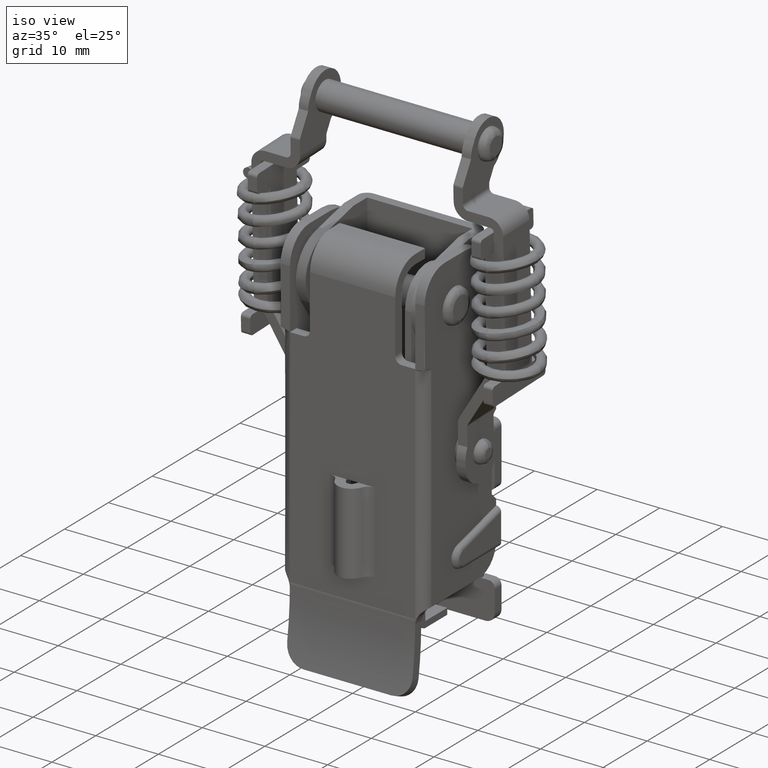
[diagram: clean part render]
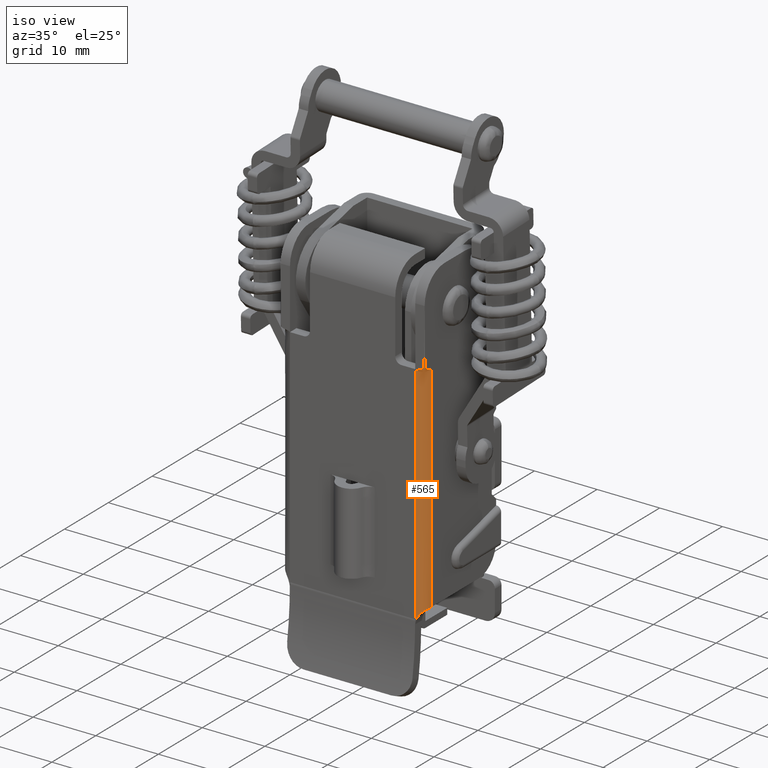
[diagram: same view with one face highlighted and labeled with its STEP entity id]
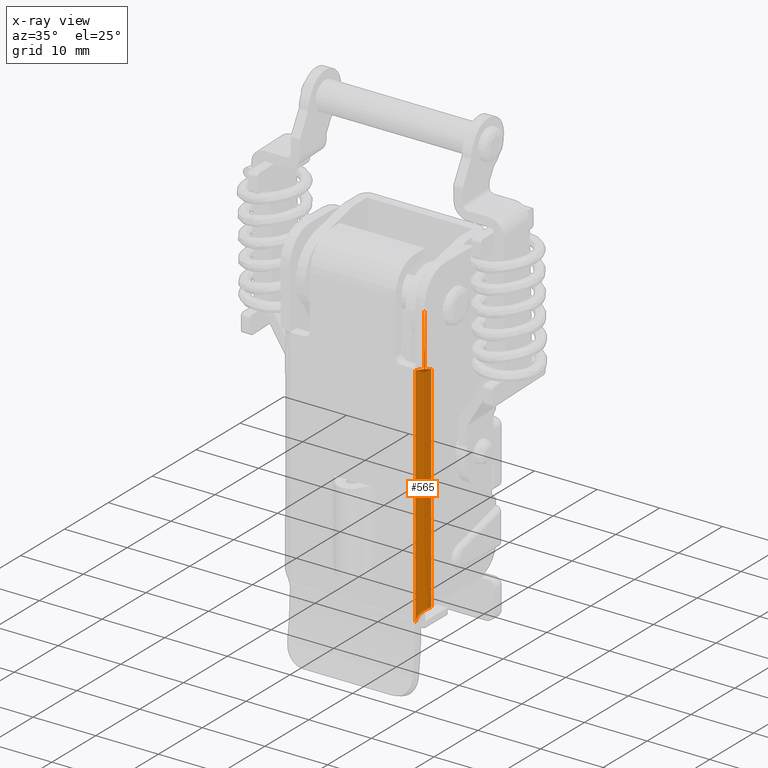
[diagram: x-ray of the same camera — body ghosted, the highlighted face saturated]
A machine part, iso view. The second image highlights one B-rep face of the part: STEP entity #565.
The next image is the same camera in x-ray: the body ghosted, the highlighted face saturated — about 0% of this face is hidden behind the body in this view.
In plain terms, the highlighted face is a freeform B-spline surface patch.
Its self-contained STEP definition (entity closure, byte-faithful):
#565=ADVANCED_FACE('',(#3675),#3674,.T.);
#3674=( BOUNDED_SURFACE() B_SPLINE_SURFACE( 2,3,((#6622,#6623,#6624,#6625,#6626,#6627,#6628,#6629,#6630,#6631),(#6632,#6633,#6634,#6635,#6636,#6637,#6638,#6639,#6640,#6641),(#6642,#6643,#6644,#6645,#6646,#6647,#6648,#6649,#6650,#6651)), .UNSPECIFIED.,.F.,.F.,.F.) B_SPLINE_SURFACE_WITH_KNOTS((3,3),(4,3,3,4),(0.00000000000E+00,1.00000000000E+00),(-2.40000000000E-02,-1.48850020831E-02,-1.42566000803E-02,3.19160038275E-02), .UNSPECIFIED. ) GEOMETRIC_REPRESENTATION_ITEM() RATIONAL_B_SPLINE_SURFACE(((1.00000000000E+00,1.00000000000E+00,1.00000000000E+00,1.00000000000E+00,1.00000000000E+00,1.00000000000E+00,1.00000000000E+00,1.00000000000E+00,1.00000000000E+00,1.00000000000E+00),(7.07106781187E-01,7.07106781187E-01,7.07106781187E-01,7.07106781187E-01,7.07106781187E-01,7.07106781187E-01,7.07106781187E-01,7.07106781187E-01,7.07106781187E-01,7.07106781187E-01),(1.00000000000E+00,1.00000000000E+00,1.00000000000E+00,1.00000000000E+00,1.00000000000E+00,1.00000000000E+00,1.00000000000E+00,1.00000000000E+00,1.00000000000E+00,1.00000000000E+00))) REPRESENTATION_ITEM('') SURFACE() );
#3675=FACE_OUTER_BOUND('',#6652,.T.);
#6622=CARTESIAN_POINT('',(1.15000000000E+01,0.00000000000E+00,2.40000000000E+01));
#6623=CARTESIAN_POINT('',(1.15000000000E+01,3.33333333333E-02,2.09616673610E+01));
#6624=CARTESIAN_POINT('',(1.15000000000E+01,6.66666666667E-02,1.79233347221E+01));
#6625=CARTESIAN_POINT('',(1.15000000000E+01,1.00000000000E-01,1.48850020831E+01));
#6626=CARTESIAN_POINT('',(1.15000000000E+01,1.02298051367E-01,1.46755347488E+01));
#6627=CARTESIAN_POINT('',(1.15000000000E+01,1.50000000000E+00,1.44660674146E+01));
#6628=CARTESIAN_POINT('',(1.15000000000E+01,1.50000000000E+00,1.42566000803E+01));
#6629=CARTESIAN_POINT('',(1.15000000000E+01,1.50000000000E+00,-1.13426788896E+00));
#6630=CARTESIAN_POINT('',(1.15000000000E+01,1.50000000000E+00,-1.65251358583E+01));
#6631=CARTESIAN_POINT('',(1.15000000000E+01,1.50000000000E+00,-3.19160038275E+01));
#6632=CARTESIAN_POINT('',(1.15000000000E+01,0.00000000000E+00,2.40000000000E+01));
#6633=CARTESIAN_POINT('',(1.15000000000E+01,0.00000000000E+00,2.09616673610E+01));
#6634=CARTESIAN_POINT('',(1.15000000000E+01,0.00000000000E+00,1.79233347221E+01));
#6635=CARTESIAN_POINT('',(1.15000000000E+01,0.00000000000E+00,1.48850020831E+01));
#6636=CARTESIAN_POINT('',(1.15000000000E+01,0.00000000000E+00,1.46755347488E+01));
#6637=CARTESIAN_POINT('',(1.15000000000E+01,0.00000000000E+00,1.44660674146E+01));
#6638=CARTESIAN_POINT('',(1.15000000000E+01,0.00000000000E+00,1.42566000803E+01));
#6639=CARTESIAN_POINT('',(1.15000000000E+01,0.00000000000E+00,-1.13426788896E+00));
#6640=CARTESIAN_POINT('',(1.15000000000E+01,0.00000000000E+00,-1.65251358583E+01));
#6641=CARTESIAN_POINT('',(1.15000000000E+01,0.00000000000E+00,-3.19160038275E+01));
#6642=CARTESIAN_POINT('',(1.15000000000E+01,0.00000000000E+00,2.40000000000E+01));
#6643=CARTESIAN_POINT('',(1.14666666667E+01,0.00000000000E+00,2.09616673610E+01));
#6644=CARTESIAN_POINT('',(1.14333333333E+01,0.00000000000E+00,1.79233347221E+01));
#6645=CARTESIAN_POINT('',(1.14000000000E+01,0.00000000000E+00,1.48850020831E+01));
#6646=CARTESIAN_POINT('',(1.13977019486E+01,0.00000000000E+00,1.46755347488E+01));
#6647=CARTESIAN_POINT('',(1.00000000000E+01,0.00000000000E+00,1.44660674146E+01));
#6648=CARTESIAN_POINT('',(1.00000000000E+01,0.00000000000E+00,1.42566000803E+01));
#6649=CARTESIAN_POINT('',(1.00000000000E+01,0.00000000000E+00,-1.13426788896E+00));
#6650=CARTESIAN_POINT('',(1.00000000000E+01,0.00000000000E+00,-1.65251358583E+01));
#6651=CARTESIAN_POINT('',(1.00000000000E+01,0.00000000000E+00,-3.19160038275E+01));
#6652=EDGE_LOOP('',(#11344,#11345,#11346,#11347,#11348));
#11344=ORIENTED_EDGE('',*,*,#12723,.F.);
#11345=ORIENTED_EDGE('',*,*,#12722,.F.);
#11346=ORIENTED_EDGE('',*,*,#12701,.F.);
#11347=ORIENTED_EDGE('',*,*,#12489,.F.);
#11348=ORIENTED_EDGE('',*,*,#12493,.F.);
#12489=EDGE_CURVE('',#16888,#16896,#16897,.T.);
#12493=EDGE_CURVE('',#16916,#16888,#16924,.T.);
#12701=EDGE_CURVE('',#16896,#18322,#18323,.T.);
#12722=EDGE_CURVE('',#18322,#18458,#18459,.T.);
#12723=EDGE_CURVE('',#18458,#16916,#18465,.T.);
#16888=VERTEX_POINT('',#22700);
#16896=VERTEX_POINT('',#22706);
#16897=(BOUNDED_CURVE() B_SPLINE_CURVE(3,(#22707,#22708,#22709,#22710,#22711,#22712,#22713,#22714,#22715,#22716,#22717,#22718,#22719,#22720,#22721,#22722),.UNSPECIFIED.,.F.,.F.) B_SPLINE_CURVE_WITH_KNOTS((4,2,2,2,2,2,2,4),(0.00000000000E+00,4.56434992355E-04,9.12869984711E-04,1.36930497707E-03,1.82573996942E-03,2.28217496178E-03,2.73860995413E-03,3.65147993884E-03),.UNSPECIFIED.) CURVE() GEOMETRIC_REPRESENTATION_ITEM() RATIONAL_B_SPLINE_CURVE((1.00000000000E+00,1.00000000000E+00,1.00000000000E+00,1.00000000000E+00,1.00000000000E+00,1.00000000000E+00,1.00000000000E+00,1.00000000000E+00,1.00000000000E+00,1.00000000000E+00,1.00000000000E+00,1.00000000000E+00,1.00000000000E+00,1.00000000000E+00,1.00000000000E+00,1.00000000000E+00)) REPRESENTATION_ITEM('') );
#16916=VERTEX_POINT('',#22730);
#16924=(BOUNDED_CURVE() B_SPLINE_CURVE(3,(#22736,#22737,#22738,#22739,#22740,#22741,#22742,#22743,#22744,#22745),.UNSPECIFIED.,.F.,.F.) B_SPLINE_CURVE_WITH_KNOTS((4,3,3,4),(-2.40000000000E-02,-1.48850020831E-02,-1.42566000803E-02,2.00000000000E-02),.UNSPECIFIED.) CURVE() GEOMETRIC_REPRESENTATION_ITEM() RATIONAL_B_SPLINE_CURVE((1.00000000000E+00,1.00000000000E+00,1.00000000000E+00,1.00000000000E+00,1.00000000000E+00,1.00000000000E+00,1.00000000000E+00,1.00000000000E+00,1.00000000000E+00,1.00000000000E+00)) REPRESENTATION_ITEM('') );
#18322=VERTEX_POINT('',#23608);
#18323=LINE('',#23609,#23610);
#18458=VERTEX_POINT('',#23700);
#18459=LINE('',#23701,#23702);
#18465=(BOUNDED_CURVE() B_SPLINE_CURVE(3,(#23704,#23705,#23706,#23707,#23708,#23709,#23710,#23711,#23712,#23713),.UNSPECIFIED.,.F.,.F.) B_SPLINE_CURVE_WITH_KNOTS((4,3,3,4),(-2.13717358923E-02,1.42566000803E-02,1.48850020831E-02,2.40000000000E-02),.UNSPECIFIED.) CURVE() GEOMETRIC_REPRESENTATION_ITEM() RATIONAL_B_SPLINE_CURVE((1.00000000000E+00,1.00000000000E+00,1.00000000000E+00,1.00000000000E+00,1.00000000000E+00,1.00000000000E+00,1.00000000000E+00,1.00000000000E+00,1.00000000000E+00,1.00000000000E+00)) REPRESENTATION_ITEM('') );
#22700=CARTESIAN_POINT('',(1.15000000000E+01,1.50000000000E+00,-2.00000000000E+01));
#22706=CARTESIAN_POINT('',(1.00000000000E+01,1.11022302463E-13,-2.23187573124E+01));
#22707=CARTESIAN_POINT('',(1.15000000000E+01,1.50000000000E+00,-2.00000071250E+01));
#22708=CARTESIAN_POINT('',(1.15000000000E+01,1.34621999277E+00,-2.00000071250E+01));
#22709=CARTESIAN_POINT('',(1.14761664671E+01,1.19430224119E+00,-2.00132130068E+01));
#22710=CARTESIAN_POINT('',(1.13863529022E+01,9.07932276987E-01,-2.00676480017E+01));
#22711=CARTESIAN_POINT('',(1.13204900145E+01,7.74537668366E-01,-2.01090175230E+01));
#22712=CARTESIAN_POINT('',(1.11616794163E+01,5.40578087237E-01,-2.02225931047E+01));
#22713=CARTESIAN_POINT('',(1.10690740621E+01,4.40363503742E-01,-2.02949027967E+01));
#22714=CARTESIAN_POINT('',(1.08781399047E+01,2.77453820063E-01,-2.04676325781E+01));
#22715=CARTESIAN_POINT('',(1.07798266554E+01,2.14399431079E-01,-2.05681721189E+01));
#22716=CARTESIAN_POINT('',(1.05942230963E+01,1.18769625628E-01,-2.07896128837E+01));
#22717=CARTESIAN_POINT('',(1.05076405898E+01,8.61344942740E-02,-2.09091716702E+01));
#22718=CARTESIAN_POINT('',(1.03506043825E+01,3.92497805420E-02,-2.11651290190E+01));
#22719=CARTESIAN_POINT('',(1.02807147601E+01,2.53117797952E-02,-2.13010215312E+01));
#22720=CARTESIAN_POINT('',(1.01050361895E+01,-9.96966140435E-04,-2.17174148981E+01));
#22721=CARTESIAN_POINT('',(1.00292390500E+01,-1.05879118407E-19,-2.20147752744E+01));
#22722=CARTESIAN_POINT('',(1.00000000000E+01,-5.89850709014E-34,-2.23187573124E+01));
#22730=CARTESIAN_POINT('',(1.15000000000E+01,0.00000000000E+00,2.40000000000E+01));
#22736=CARTESIAN_POINT('',(1.15000000000E+01,0.00000000000E+00,2.40000000000E+01));
#22737=CARTESIAN_POINT('',(1.15000000000E+01,3.33333333333E-02,2.09616673610E+01));
#22738=CARTESIAN_POINT('',(1.15000000000E+01,6.66666666667E-02,1.79233347221E+01));
#22739=CARTESIAN_POINT('',(1.15000000000E+01,1.00000000000E-01,1.48850020831E+01));
#22740=CARTESIAN_POINT('',(1.15000000000E+01,1.02298051367E-01,1.46755347488E+01));
#22741=CARTESIAN_POINT('',(1.15000000000E+01,1.50000000000E+00,1.44660674146E+01));
#22742=CARTESIAN_POINT('',(1.15000000000E+01,1.50000000000E+00,1.42566000803E+01));
#22743=CARTESIAN_POINT('',(1.15000000000E+01,1.50000000000E+00,2.83773338689E+00));
#22744=CARTESIAN_POINT('',(1.15000000000E+01,1.50000000000E+00,-8.58113330656E+00));
#22745=CARTESIAN_POINT('',(1.15000000000E+01,1.50000000000E+00,-2.00000000000E+01));
#23608=CARTESIAN_POINT('',(1.00000000000E+01,0.00000000000E+00,-2.15863260756E+01));
#23609=CARTESIAN_POINT('',(1.00000000000E+01,0.00000000000E+00,-2.23187573124E+01));
#23610=VECTOR('',#23611,7.32431236807E-01);
#23611=DIRECTION('',(0.00000000000E+00,0.00000000000E+00,1.00000000000E+00));
#23700=CARTESIAN_POINT('',(1.00000000000E+01,1.73472347598E-15,-2.13717358923E+01));
#23701=CARTESIAN_POINT('',(1.00000000000E+01,0.00000000000E+00,-2.15863260756E+01));
#23702=VECTOR('',#23703,2.14590183313E-01);
#23703=DIRECTION('',(0.00000000000E+00,0.00000000000E+00,1.00000000000E+00));
#23704=CARTESIAN_POINT('',(1.00000000000E+01,0.00000000000E+00,-2.13717358923E+01));
#23705=CARTESIAN_POINT('',(1.00000000000E+01,0.00000000000E+00,-9.49562390142E+00));
#23706=CARTESIAN_POINT('',(1.00000000000E+01,0.00000000000E+00,2.38048808945E+00));
#23707=CARTESIAN_POINT('',(1.00000000000E+01,0.00000000000E+00,1.42566000803E+01));
#23708=CARTESIAN_POINT('',(1.00000000000E+01,0.00000000000E+00,1.44660674146E+01));
#23709=CARTESIAN_POINT('',(1.13977019486E+01,0.00000000000E+00,1.46755347488E+01));
#23710=CARTESIAN_POINT('',(1.14000000000E+01,0.00000000000E+00,1.48850020831E+01));
#23711=CARTESIAN_POINT('',(1.14333333333E+01,0.00000000000E+00,1.79233347221E+01));
#23712=CARTESIAN_POINT('',(1.14666666667E+01,0.00000000000E+00,2.09616673610E+01));
#23713=CARTESIAN_POINT('',(1.15000000000E+01,0.00000000000E+00,2.40000000000E+01));